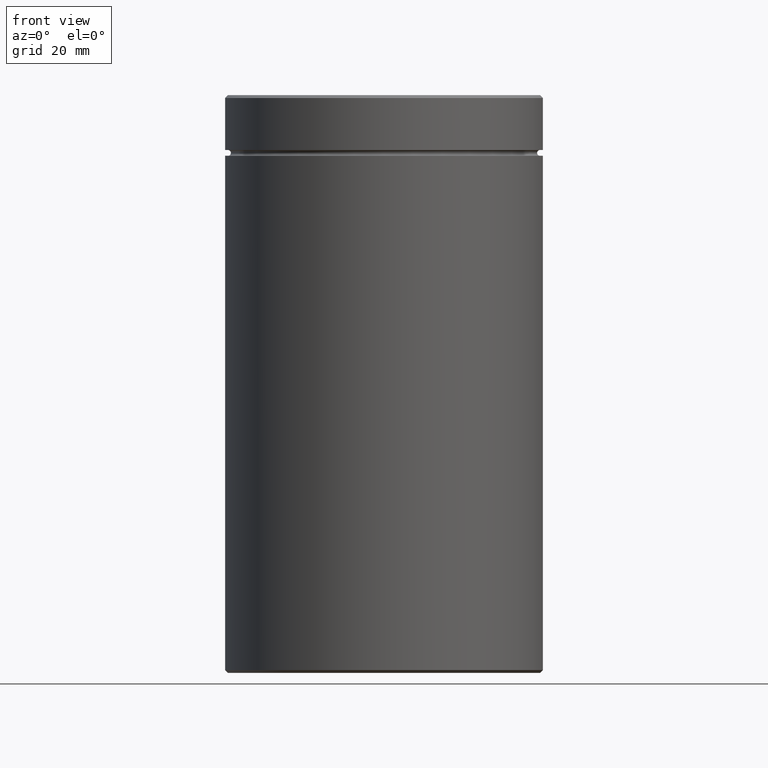
[diagram: clean part render]
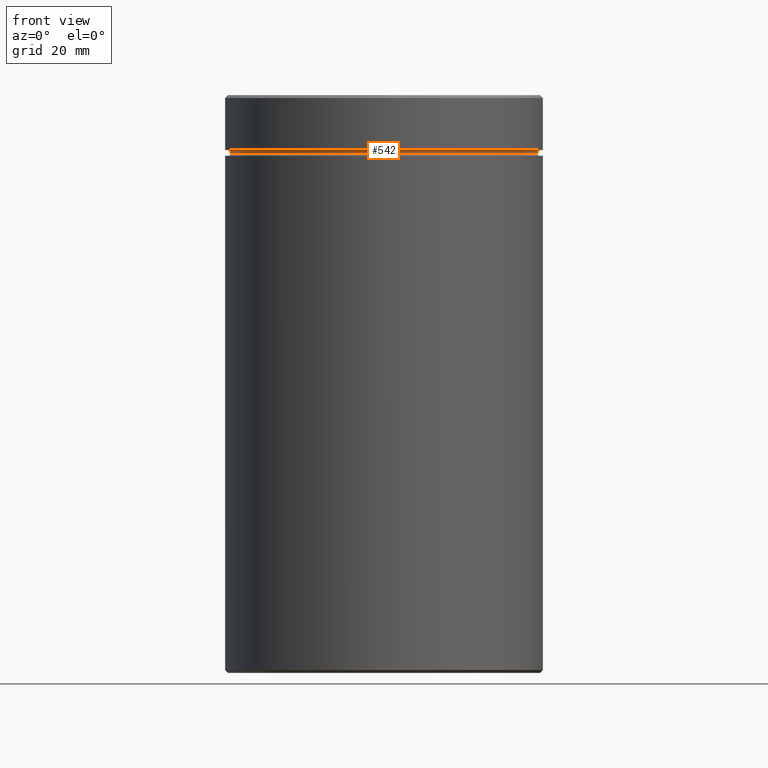
[diagram: same view with one face highlighted and labeled with its STEP entity id]
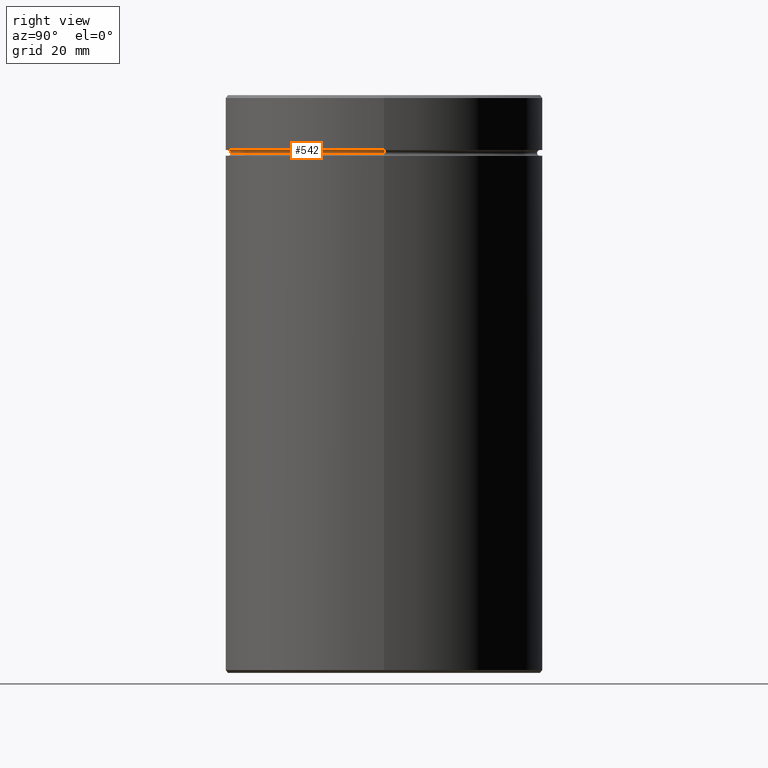
[diagram: same view with one face highlighted and labeled with its STEP entity id]
A machine part, front view. The second image highlights one B-rep face of the part: STEP entity #542.
A second angle (right view) of the same face is appended — the face is thin or edge-on in the first view.
In plain terms, the highlighted toroidal blend (fillet) surface has major radius 27 mm and minor (blend) radius 0.5 mm.
Its self-contained STEP definition (entity closure, byte-faithful):
#2 = AXIS2_PLACEMENT_3D ( 'NONE', #419, #155, #559 ) ;
#29 = CIRCLE ( 'NONE', #130, 0.5000000000000004441 ) ;
#33 = ORIENTED_EDGE ( 'NONE', *, *, #135, .F. ) ;
#54 = ORIENTED_EDGE ( 'NONE', *, *, #517, .T. ) ;
#72 = DIRECTION ( 'NONE',  ( -0.000000000000000000, -0.000000000000000000, 1.000000000000000000 ) ) ;
#78 = CARTESIAN_POINT ( 'NONE',  ( -27.00000000000000000, 0.000000000000000000, -9.499999999999998224 ) ) ;
#83 = CARTESIAN_POINT ( 'NONE',  ( 0.000000000000000000, 0.000000000000000000, -10.00000000000000178 ) ) ;
#97 = TOROIDAL_SURFACE ( 'NONE', #332, 27.00000000000000000, 0.5000000000000000000 ) ;
#99 = ORIENTED_EDGE ( 'NONE', *, *, #418, .T. ) ;
#107 = DIRECTION ( 'NONE',  ( 0.000000000000000000, 0.000000000000000000, -1.000000000000000000 ) ) ;
#119 = DIRECTION ( 'NONE',  ( -0.000000000000000000, -0.000000000000000000, 1.000000000000000000 ) ) ;
#130 = AXIS2_PLACEMENT_3D ( 'NONE', #297, #255, #386 ) ;
#135 = EDGE_CURVE ( 'NONE', #360, #259, #401, .T. ) ;
#141 = FACE_OUTER_BOUND ( 'NONE', #288, .T. ) ;
#155 = DIRECTION ( 'NONE',  ( -0.000000000000000000, -1.000000000000000000, -0.000000000000000000 ) ) ;
#165 = VERTEX_POINT ( 'NONE', #321 ) ;
#200 = DIRECTION ( 'NONE',  ( -1.000000000000000000, 0.000000000000000000, 0.000000000000000000 ) ) ;
#253 = VERTEX_POINT ( 'NONE', #443 ) ;
#255 = DIRECTION ( 'NONE',  ( -1.224646799147353207E-16, 1.000000000000000000, 0.000000000000000000 ) ) ;
#259 = VERTEX_POINT ( 'NONE', #267 ) ;
#267 = CARTESIAN_POINT ( 'NONE',  ( 27.00000000000000000, 3.306546357697854128E-15, -9.499999999999998224 ) ) ;
#288 = EDGE_LOOP ( 'NONE', ( #99, #54, #33, #468 ) ) ;
#294 = DIRECTION ( 'NONE',  ( 1.000000000000000000, 0.000000000000000000, 0.000000000000000000 ) ) ;
#297 = CARTESIAN_POINT ( 'NONE',  ( 27.00000000000000000, 3.306546357697853733E-15, -9.999999999999998224 ) ) ;
#307 = CIRCLE ( 'NONE', #400, 26.50000000000000000 ) ;
#321 = CARTESIAN_POINT ( 'NONE',  ( 26.50000000000000000, 0.000000000000000000, -10.00000000000000178 ) ) ;
#330 = CARTESIAN_POINT ( 'NONE',  ( 0.000000000000000000, 0.000000000000000000, -9.499999999999998224 ) ) ;
#332 = AXIS2_PLACEMENT_3D ( 'NONE', #368, #107, #406 ) ;
#336 = EDGE_CURVE ( 'NONE', #253, #360, #449, .T. ) ;
#360 = VERTEX_POINT ( 'NONE', #78 ) ;
#368 = CARTESIAN_POINT ( 'NONE',  ( 0.000000000000000000, 0.000000000000000000, -9.999999999999998224 ) ) ;
#386 = DIRECTION ( 'NONE',  ( -1.000000000000000000, -1.224646799147349509E-16, 0.000000000000000000 ) ) ;
#400 = AXIS2_PLACEMENT_3D ( 'NONE', #83, #119, #294 ) ;
#401 = CIRCLE ( 'NONE', #440, 27.00000000000000000 ) ;
#406 = DIRECTION ( 'NONE',  ( -1.000000000000000000, 0.000000000000000000, 0.000000000000000000 ) ) ;
#418 = EDGE_CURVE ( 'NONE', #253, #165, #307, .T. ) ;
#419 = CARTESIAN_POINT ( 'NONE',  ( -27.00000000000000000, 0.000000000000000000, -9.999999999999998224 ) ) ;
#440 = AXIS2_PLACEMENT_3D ( 'NONE', #330, #72, #200 ) ;
#443 = CARTESIAN_POINT ( 'NONE',  ( -26.50000000000000000, 3.275930187719169552E-15, -10.00000000000000178 ) ) ;
#449 = CIRCLE ( 'NONE', #2, 0.5000000000000004441 ) ;
#468 = ORIENTED_EDGE ( 'NONE', *, *, #336, .F. ) ;
#517 = EDGE_CURVE ( 'NONE', #165, #259, #29, .T. ) ;
#542 = ADVANCED_FACE ( 'NONE', ( #141 ), #97, .F. ) ;
#559 = DIRECTION ( 'NONE',  ( 0.000000000000000000, 0.000000000000000000, -1.000000000000000000 ) ) ;